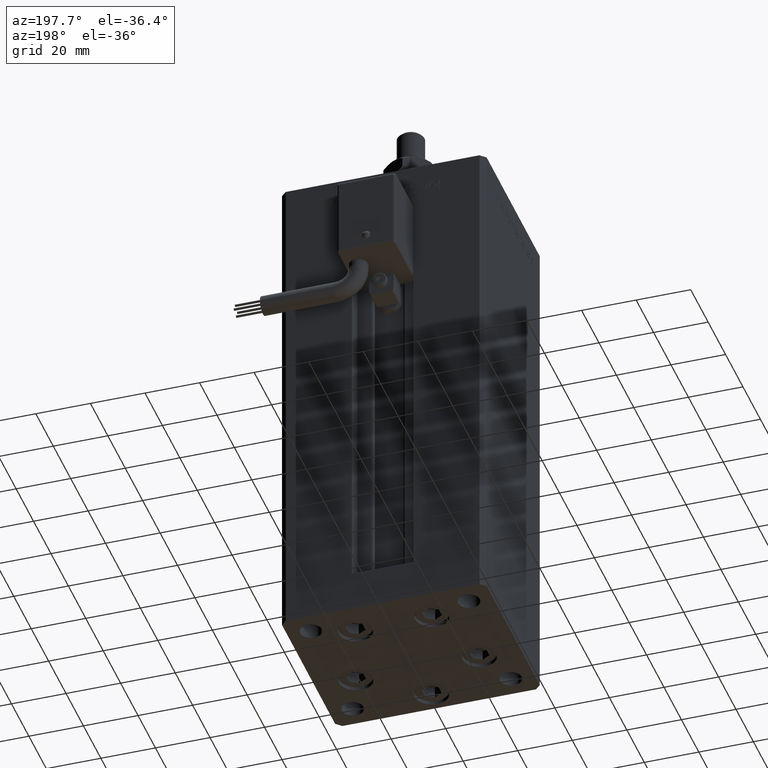
[diagram: clean part render]
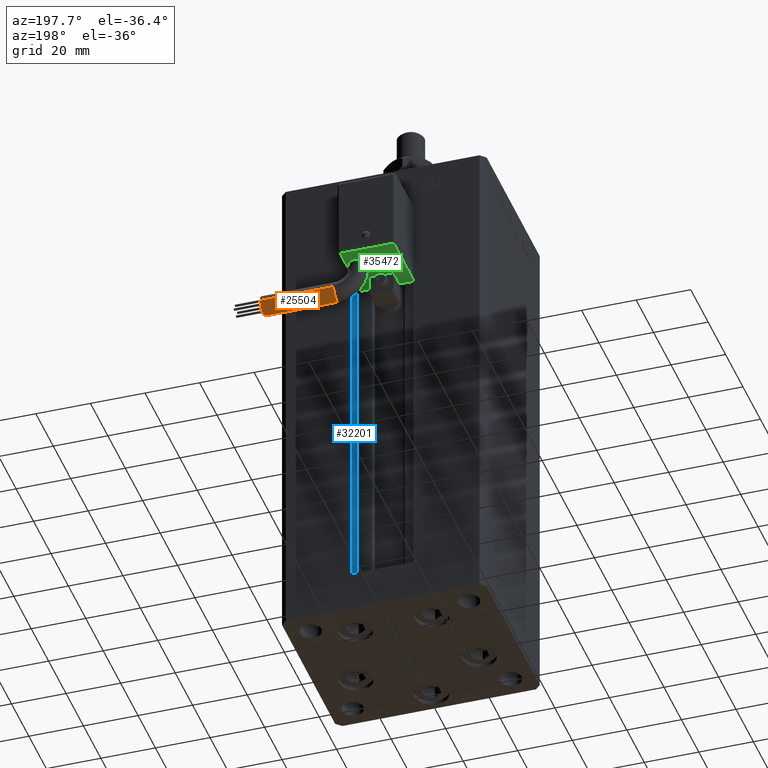
[diagram: same view with three faces highlighted in distinct colors, each labeled with its STEP entity id]
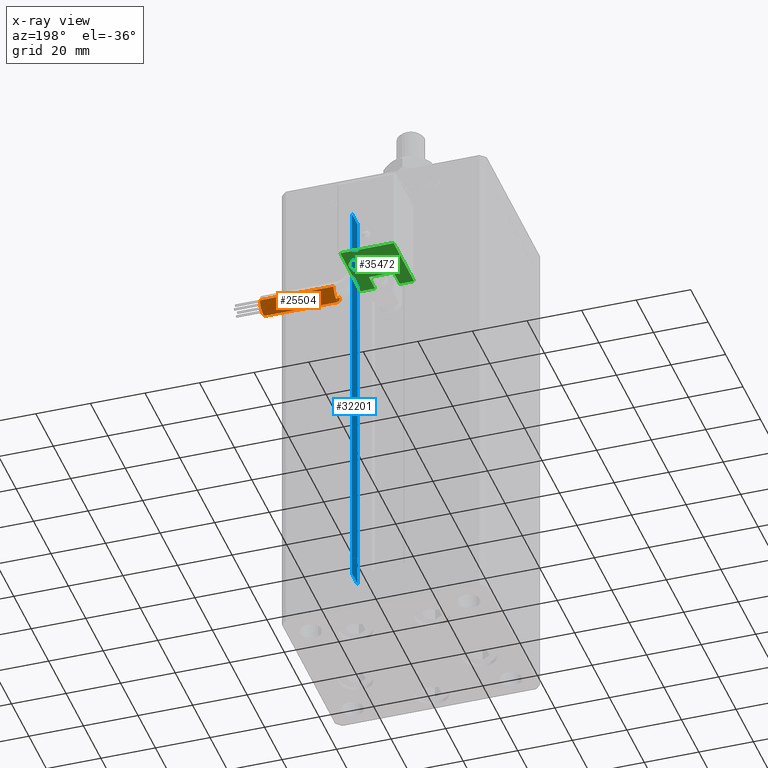
[diagram: x-ray of the same camera — body ghosted, the three highlighted faces saturated]
A machine part, auxiliary view with three faces highlighted in distinct colors.
The next image is the same camera in x-ray (body ghosted, the three faces saturated) — at least one of them is partly hidden behind the body in this view.
Their STEP definitions:

[orange] entity #25504 — the highlighted cylindrical surface (edge-blend (fillet) strip) has radius 3.5 mm, axis along (1, -0, 0).
#353 = VERTEX_POINT ( 'NONE', #52054 ) ;
#1075 = CARTESIAN_POINT ( 'NONE',  ( 40.80000000000000426, 42.00000000000000000, -65.00000000000000000 ) ) ;
#3447 = DIRECTION ( 'NONE',  ( 1.000000000000000000, 0.000000000000000000, 2.220446049250000002E-16 ) ) ;
#3797 = EDGE_CURVE ( 'NONE', #17011, #22672, #29341, .T. ) ;
#7243 = DIRECTION ( 'NONE',  ( 1.000000000000000000, -2.599999999999999847E-16, 2.220446049250000002E-16 ) ) ;
#8444 = DIRECTION ( 'NONE',  ( 0.000000000000000000, 0.000000000000000000, -1.000000000000000000 ) ) ;
#11967 = EDGE_CURVE ( 'NONE', #22672, #37293, #14078, .T. ) ;
#12347 = ORIENTED_EDGE ( 'NONE', *, *, #21732, .T. ) ;
#14078 = CIRCLE ( 'NONE', #34227, 3.500000000000003109 ) ;
#14556 = DIRECTION ( 'NONE',  ( 0.000000000000000000, 0.000000000000000000, -1.000000000000000000 ) ) ;
#16257 = VERTEX_POINT ( 'NONE', #39775 ) ;
#17011 = VERTEX_POINT ( 'NONE', #42108 ) ;
#20426 = LINE ( 'NONE', #33620, #56554 ) ;
#20681 = ORIENTED_EDGE ( 'NONE', *, *, #47004, .T. ) ;
#21732 = EDGE_CURVE ( 'NONE', #16257, #37293, #20426, .T. ) ;
#22364 = AXIS2_PLACEMENT_3D ( 'NONE', #30127, #3447, #38443 ) ;
#22408 = ORIENTED_EDGE ( 'NONE', *, *, #29130, .T. ) ;
#22672 = VERTEX_POINT ( 'NONE', #37751 ) ;
#23219 = DIRECTION ( 'NONE',  ( 1.000000000000000000, -2.599999999999999847E-16, 2.220446049250000002E-16 ) ) ;
#25504 = ADVANCED_FACE ( 'NONE', ( #49317 ), #27521, .T. ) ;
#26221 = DIRECTION ( 'NONE',  ( 1.000000000000000000, 0.000000000000000000, 2.220446049250000002E-16 ) ) ;
#27521 = CYLINDRICAL_SURFACE ( 'NONE', #51197, 3.500000000000003109 ) ;
#27916 = CARTESIAN_POINT ( 'NONE',  ( 40.80000000000000426, 45.50000000000000711, -65.00000000000000000 ) ) ;
#29130 = EDGE_CURVE ( 'NONE', #353, #16257, #50297, .T. ) ;
#29341 = LINE ( 'NONE', #35251, #54100 ) ;
#30127 = CARTESIAN_POINT ( 'NONE',  ( 13.79999999999999893, 42.00000000000000000, -65.00000000000000000 ) ) ;
#30649 = CIRCLE ( 'NONE', #22364, 3.500000000000003109 ) ;
#32384 = DIRECTION ( 'NONE',  ( -4.956352788505158337E-16, -1.000000000000000000, 0.000000000000000000 ) ) ;
#33620 = CARTESIAN_POINT ( 'NONE',  ( 13.80000000000000071, 45.50000000000000711, -65.00000000000000000 ) ) ;
#34227 = AXIS2_PLACEMENT_3D ( 'NONE', #1075, #50128, #14556 ) ;
#35251 = CARTESIAN_POINT ( 'NONE',  ( 13.79999999999999716, 38.50000000000000000, -65.00000000000000000 ) ) ;
#35641 = ORIENTED_EDGE ( 'NONE', *, *, #11967, .F. ) ;
#36845 = EDGE_LOOP ( 'NONE', ( #20681, #22408, #12347, #35641, #45057 ) ) ;
#37293 = VERTEX_POINT ( 'NONE', #27916 ) ;
#37751 = CARTESIAN_POINT ( 'NONE',  ( 40.80000000000000426, 38.50000000000000000, -65.00000000000000000 ) ) ;
#37928 = DIRECTION ( 'NONE',  ( 1.000000000000000000, -2.599999999999999847E-16, 2.220446049250000002E-16 ) ) ;
#38443 = DIRECTION ( 'NONE',  ( 0.000000000000000000, 0.000000000000000000, -1.000000000000000000 ) ) ;
#39775 = CARTESIAN_POINT ( 'NONE',  ( 13.79999999999999893, 45.50000000000000711, -65.00000000000000000 ) ) ;
#42108 = CARTESIAN_POINT ( 'NONE',  ( 13.79999999999999893, 38.50000000000000000, -65.00000000000000000 ) ) ;
#42960 = AXIS2_PLACEMENT_3D ( 'NONE', #48885, #26221, #8444 ) ;
#44997 = CARTESIAN_POINT ( 'NONE',  ( 13.79999999999999893, 42.00000000000000000, -65.00000000000000000 ) ) ;
#45057 = ORIENTED_EDGE ( 'NONE', *, *, #3797, .F. ) ;
#47004 = EDGE_CURVE ( 'NONE', #17011, #353, #30649, .T. ) ;
#48885 = CARTESIAN_POINT ( 'NONE',  ( 13.79999999999999893, 42.00000000000000000, -65.00000000000000000 ) ) ;
#49317 = FACE_OUTER_BOUND ( 'NONE', #36845, .T. ) ;
#50128 = DIRECTION ( 'NONE',  ( 1.000000000000000000, 0.000000000000000000, 2.220446049250000002E-16 ) ) ;
#50297 = CIRCLE ( 'NONE', #42960, 3.500000000000003109 ) ;
#51197 = AXIS2_PLACEMENT_3D ( 'NONE', #44997, #23219, #32384 ) ;
#52054 = CARTESIAN_POINT ( 'NONE',  ( 13.79999999999999893, 42.00000000000000000, -68.50000000000000000 ) ) ;
#54100 = VECTOR ( 'NONE', #7243, 1000.000000000000000 ) ;
#56554 = VECTOR ( 'NONE', #37928, 1000.000000000000000 ) ;

[blue] entity #32201 — the highlighted planar face has unit normal (1, 0, 0).
#1227 = ORIENTED_EDGE ( 'NONE', *, *, #21508, .T. ) ;
#1613 = LINE ( 'NONE', #23715, #26308 ) ;
#7950 = VERTEX_POINT ( 'NONE', #49091 ) ;
#8076 = PLANE ( 'NONE',  #50386 ) ;
#8264 = CARTESIAN_POINT ( 'NONE',  ( 11.25000000000000178, 25.99999999999999289, 0.000000000000000000 ) ) ;
#8676 = EDGE_CURVE ( 'NONE', #39926, #7950, #45475, .T. ) ;
#12648 = CARTESIAN_POINT ( 'NONE',  ( 11.25000000000000178, 25.99999999999999289, 0.000000000000000000 ) ) ;
#14798 = CARTESIAN_POINT ( 'NONE',  ( 11.25000000000000178, 25.99999999999999289, 0.000000000000000000 ) ) ;
#17135 = EDGE_CURVE ( 'NONE', #7950, #51050, #43522, .T. ) ;
#18734 = ORIENTED_EDGE ( 'NONE', *, *, #8676, .F. ) ;
#20964 = EDGE_LOOP ( 'NONE', ( #48505, #18734, #1227, #56780 ) ) ;
#21454 = DIRECTION ( 'NONE',  ( -0.000000000000000000, -0.000000000000000000, 1.000000000000000000 ) ) ;
#21508 = EDGE_CURVE ( 'NONE', #39926, #48657, #25445, .T. ) ;
#21552 = DIRECTION ( 'NONE',  ( 0.000000000000000000, 0.000000000000000000, -1.000000000000000000 ) ) ;
#21795 = EDGE_CURVE ( 'NONE', #51050, #48657, #1613, .T. ) ;
#23715 = CARTESIAN_POINT ( 'NONE',  ( 11.25000000000000178, 0.000000000000000000, 156.0000000000000000 ) ) ;
#25445 = LINE ( 'NONE', #42924, #53788 ) ;
#26147 = FACE_OUTER_BOUND ( 'NONE', #20964, .T. ) ;
#26308 = VECTOR ( 'NONE', #29143, 1000.000000000000000 ) ;
#28484 = DIRECTION ( 'NONE',  ( -0.000000000000000000, -0.000000000000000000, 1.000000000000000000 ) ) ;
#29143 = DIRECTION ( 'NONE',  ( -0.000000000000000000, -1.000000000000000000, 0.000000000000000000 ) ) ;
#32201 = ADVANCED_FACE ( 'NONE', ( #26147 ), #8076, .F. ) ;
#38804 = VECTOR ( 'NONE', #21454, 1000.000000000000000 ) ;
#39798 = CARTESIAN_POINT ( 'NONE',  ( 11.25000000000000178, 32.49999999999999289, 0.000000000000000000 ) ) ;
#39926 = VERTEX_POINT ( 'NONE', #8264 ) ;
#41016 = CARTESIAN_POINT ( 'NONE',  ( 11.25000000000000178, 25.99999999999999289, 156.0000000000000000 ) ) ;
#42461 = CARTESIAN_POINT ( 'NONE',  ( 11.24999999999999467, 32.49999999999999289, 156.0000000000000000 ) ) ;
#42924 = CARTESIAN_POINT ( 'NONE',  ( 11.25000000000000178, 25.99999999999999289, 0.000000000000000000 ) ) ;
#43522 = LINE ( 'NONE', #39798, #38804 ) ;
#45475 = LINE ( 'NONE', #14798, #51517 ) ;
#48505 = ORIENTED_EDGE ( 'NONE', *, *, #17135, .F. ) ;
#48657 = VERTEX_POINT ( 'NONE', #41016 ) ;
#49091 = CARTESIAN_POINT ( 'NONE',  ( 11.25000000000000178, 32.49999999999999289, 0.000000000000000000 ) ) ;
#50386 = AXIS2_PLACEMENT_3D ( 'NONE', #12648, #51962, #21552 ) ;
#51050 = VERTEX_POINT ( 'NONE', #42461 ) ;
#51517 = VECTOR ( 'NONE', #54660, 1000.000000000000000 ) ;
#51962 = DIRECTION ( 'NONE',  ( 1.000000000000000000, -0.000000000000000000, 0.000000000000000000 ) ) ;
#53788 = VECTOR ( 'NONE', #28484, 1000.000000000000000 ) ;
#54660 = DIRECTION ( 'NONE',  ( 0.000000000000000000, 1.000000000000000000, 0.000000000000000000 ) ) ;
#56780 = ORIENTED_EDGE ( 'NONE', *, *, #21795, .F. ) ;

[green] entity #35472 — the highlighted planar face has unit normal (0, -0, 1).
#392 = DIRECTION ( 'NONE',  ( -3.108624468950000014E-32, 1.000000000000000000, 1.400000000000000069E-16 ) ) ;
#738 = VERTEX_POINT ( 'NONE', #27024 ) ;
#1659 = DIRECTION ( 'NONE',  ( 2.220446049250000002E-16, 1.400000000000000069E-16, -1.000000000000000000 ) ) ;
#2210 = VECTOR ( 'NONE', #19585, 1000.000000000000000 ) ;
#2614 = DIRECTION ( 'NONE',  ( 1.000000000000000000, 2.220446049250000002E-16, 0.000000000000000000 ) ) ;
#2826 = CARTESIAN_POINT ( 'NONE',  ( -4.500000000000000000, 34.00000000000000000, -55.00000000000000000 ) ) ;
#4997 = DIRECTION ( 'NONE',  ( -1.000000000000000000, 0.000000000000000000, -2.220446049250000002E-16 ) ) ;
#5241 = CARTESIAN_POINT ( 'NONE',  ( 4.500000000000000000, 34.00000000000000000, -55.00000000000000000 ) ) ;
#5449 = VERTEX_POINT ( 'NONE', #49782 ) ;
#6047 = LINE ( 'NONE', #52323, #56398 ) ;
#6421 = CARTESIAN_POINT ( 'NONE',  ( 9.799999999999998934, 26.00000000000000000, -55.00000000000000000 ) ) ;
#6682 = CIRCLE ( 'NONE', #33251, 3.500000000000003109 ) ;
#7784 = DIRECTION ( 'NONE',  ( 3.108624468950000014E-32, -1.400000000000000069E-16, 1.000000000000000000 ) ) ;
#10315 = CARTESIAN_POINT ( 'NONE',  ( 9.799999999999998934, 27.00000000000000000, -55.00000000000000000 ) ) ;
#13117 = DIRECTION ( 'NONE',  ( 1.000000000000000000, 0.000000000000000000, 2.220446049250000002E-16 ) ) ;
#13259 = CARTESIAN_POINT ( 'NONE',  ( 9.799999999999998934, 50.50000000000000000, -55.00000000000000000 ) ) ;
#13423 = EDGE_CURVE ( 'NONE', #36476, #30511, #41375, .T. ) ;
#13853 = LINE ( 'NONE', #44538, #39228 ) ;
#13952 = LINE ( 'NONE', #55651, #35170 ) ;
#14290 = CARTESIAN_POINT ( 'NONE',  ( 5.799999999999999822, 42.00000000000000000, -55.00000000000000000 ) ) ;
#14731 = DIRECTION ( 'NONE',  ( 3.108624468950000014E-32, -1.000000000000000000, -1.400000000000000069E-16 ) ) ;
#15246 = DIRECTION ( 'NONE',  ( -1.000000000000000000, 0.000000000000000000, -2.220446049250000002E-16 ) ) ;
#16346 = DIRECTION ( 'NONE',  ( 2.664535259099999699E-32, -1.000000000000000000, -1.200000000000000024E-16 ) ) ;
#16353 = EDGE_CURVE ( 'NONE', #50411, #17717, #52706, .T. ) ;
#17717 = VERTEX_POINT ( 'NONE', #13259 ) ;
#17889 = LINE ( 'NONE', #40249, #20024 ) ;
#19239 = ORIENTED_EDGE ( 'NONE', *, *, #19674, .T. ) ;
#19585 = DIRECTION ( 'NONE',  ( 2.664535259099999699E-32, -1.000000000000000000, -1.200000000000000024E-16 ) ) ;
#19674 = EDGE_CURVE ( 'NONE', #36476, #40657, #30502, .T. ) ;
#19781 = ORIENTED_EDGE ( 'NONE', *, *, #51240, .F. ) ;
#20024 = VECTOR ( 'NONE', #392, 1000.000000000000000 ) ;
#20966 = VECTOR ( 'NONE', #14731, 1000.000000000000000 ) ;
#21480 = EDGE_LOOP ( 'NONE', ( #19781, #21517 ) ) ;
#21517 = ORIENTED_EDGE ( 'NONE', *, *, #43853, .F. ) ;
#21942 = ORIENTED_EDGE ( 'NONE', *, *, #55490, .T. ) ;
#22937 = CARTESIAN_POINT ( 'NONE',  ( 5.799999999999999822, 42.00000000000000000, -55.00000000000000000 ) ) ;
#23363 = LINE ( 'NONE', #6421, #20966 ) ;
#23571 = VERTEX_POINT ( 'NONE', #10315 ) ;
#24088 = ORIENTED_EDGE ( 'NONE', *, *, #13423, .F. ) ;
#24272 = CARTESIAN_POINT ( 'NONE',  ( -9.799999999999998934, 50.50000000000000000, -55.00000000000000000 ) ) ;
#24652 = ORIENTED_EDGE ( 'NONE', *, *, #29125, .T. ) ;
#24877 = AXIS2_PLACEMENT_3D ( 'NONE', #51384, #7784, #2614 ) ;
#26070 = CARTESIAN_POINT ( 'NONE',  ( -9.799999999999998934, 27.00000000000000000, -55.00000000000000000 ) ) ;
#27024 = CARTESIAN_POINT ( 'NONE',  ( -4.500000000000000000, 27.00000000000000000, -55.00000000000000000 ) ) ;
#28682 = CARTESIAN_POINT ( 'NONE',  ( 4.500000000000000000, 34.00000000000000000, -55.00000000000000000 ) ) ;
#29125 = EDGE_CURVE ( 'NONE', #30969, #50411, #17889, .T. ) ;
#29993 = AXIS2_PLACEMENT_3D ( 'NONE', #22937, #54187, #36963 ) ;
#30502 = LINE ( 'NONE', #5241, #42714 ) ;
#30511 = VERTEX_POINT ( 'NONE', #48632 ) ;
#30969 = VERTEX_POINT ( 'NONE', #26070 ) ;
#32101 = DIRECTION ( 'NONE',  ( 0.000000000000000000, -1.000000000000000000, 0.000000000000000000 ) ) ;
#33034 = PLANE ( 'NONE',  #24877 ) ;
#33251 = AXIS2_PLACEMENT_3D ( 'NONE', #14290, #1659, #32101 ) ;
#33879 = FACE_BOUND ( 'NONE', #21480, .T. ) ;
#35170 = VECTOR ( 'NONE', #16346, 1000.000000000000000 ) ;
#35472 = ADVANCED_FACE ( 'NONE', ( #41900, #33879 ), #33034, .F. ) ;
#35650 = DIRECTION ( 'NONE',  ( -1.000000000000000000, 0.000000000000000000, -2.220446049250000002E-16 ) ) ;
#36098 = ORIENTED_EDGE ( 'NONE', *, *, #54272, .T. ) ;
#36476 = VERTEX_POINT ( 'NONE', #28682 ) ;
#36963 = DIRECTION ( 'NONE',  ( 0.000000000000000000, -1.000000000000000000, 0.000000000000000000 ) ) ;
#38406 = ORIENTED_EDGE ( 'NONE', *, *, #48603, .T. ) ;
#38656 = CARTESIAN_POINT ( 'NONE',  ( 5.799999999999999822, 45.50000000000000711, -55.00000000000000000 ) ) ;
#39228 = VECTOR ( 'NONE', #35650, 1000.000000000000000 ) ;
#39325 = EDGE_LOOP ( 'NONE', ( #43321, #36098, #24652, #45525, #21942, #38406, #24088, #19239 ) ) ;
#40249 = CARTESIAN_POINT ( 'NONE',  ( -9.799999999999998934, 51.50000000000000000, -55.00000000000000000 ) ) ;
#40657 = VERTEX_POINT ( 'NONE', #2826 ) ;
#41375 = LINE ( 'NONE', #49442, #2210 ) ;
#41900 = FACE_OUTER_BOUND ( 'NONE', #39325, .T. ) ;
#42714 = VECTOR ( 'NONE', #15246, 1000.000000000000000 ) ;
#43321 = ORIENTED_EDGE ( 'NONE', *, *, #45254, .T. ) ;
#43853 = EDGE_CURVE ( 'NONE', #46193, #5449, #6682, .T. ) ;
#44538 = CARTESIAN_POINT ( 'NONE',  ( 10.80000000000000071, 27.00000000000000000, -55.00000000000000000 ) ) ;
#44639 = CIRCLE ( 'NONE', #29993, 3.500000000000003109 ) ;
#45254 = EDGE_CURVE ( 'NONE', #40657, #738, #13952, .T. ) ;
#45525 = ORIENTED_EDGE ( 'NONE', *, *, #16353, .T. ) ;
#46193 = VERTEX_POINT ( 'NONE', #38656 ) ;
#48603 = EDGE_CURVE ( 'NONE', #23571, #30511, #6047, .T. ) ;
#48632 = CARTESIAN_POINT ( 'NONE',  ( 4.500000000000000000, 27.00000000000000000, -55.00000000000000000 ) ) ;
#48944 = VECTOR ( 'NONE', #13117, 1000.000000000000000 ) ;
#49442 = CARTESIAN_POINT ( 'NONE',  ( 4.500000000000000000, 34.00000000000000000, -55.00000000000000000 ) ) ;
#49782 = CARTESIAN_POINT ( 'NONE',  ( 5.799999999999999822, 38.50000000000000000, -55.00000000000000000 ) ) ;
#50411 = VERTEX_POINT ( 'NONE', #24272 ) ;
#51240 = EDGE_CURVE ( 'NONE', #5449, #46193, #44639, .T. ) ;
#51384 = CARTESIAN_POINT ( 'NONE',  ( 10.80000000000000071, 51.50000000000000000, -55.00000000000000000 ) ) ;
#52323 = CARTESIAN_POINT ( 'NONE',  ( 10.80000000000000071, 27.00000000000000000, -55.00000000000000000 ) ) ;
#52706 = LINE ( 'NONE', #55880, #48944 ) ;
#54187 = DIRECTION ( 'NONE',  ( 2.220446049250000002E-16, 1.400000000000000069E-16, -1.000000000000000000 ) ) ;
#54272 = EDGE_CURVE ( 'NONE', #738, #30969, #13853, .T. ) ;
#55490 = EDGE_CURVE ( 'NONE', #17717, #23571, #23363, .T. ) ;
#55651 = CARTESIAN_POINT ( 'NONE',  ( -4.500000000000000000, 34.00000000000000000, -55.00000000000000000 ) ) ;
#55880 = CARTESIAN_POINT ( 'NONE',  ( 10.80000000000000071, 50.50000000000000000, -55.00000000000000000 ) ) ;
#56398 = VECTOR ( 'NONE', #4997, 1000.000000000000000 ) ;